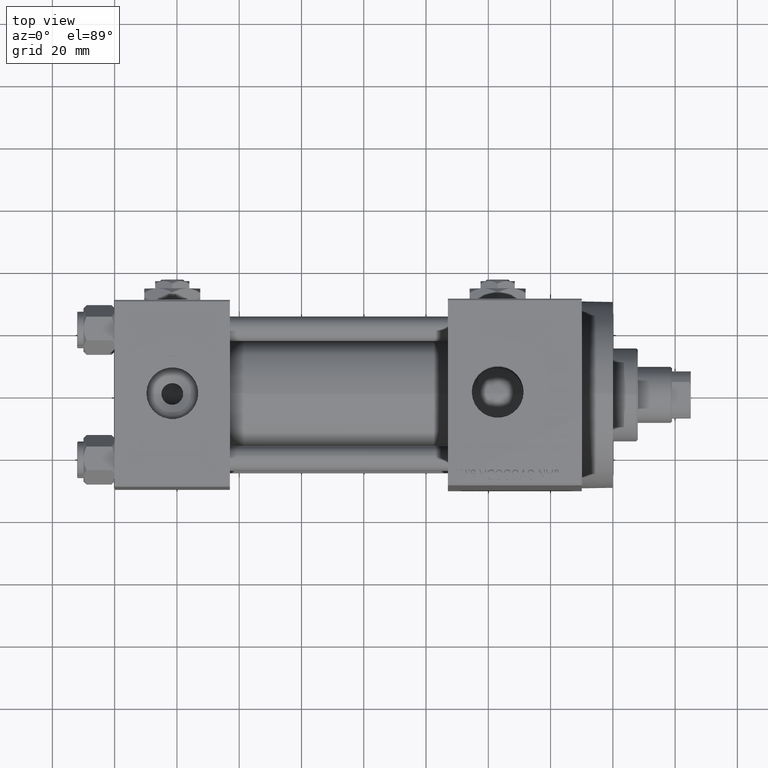
[diagram: clean part render]
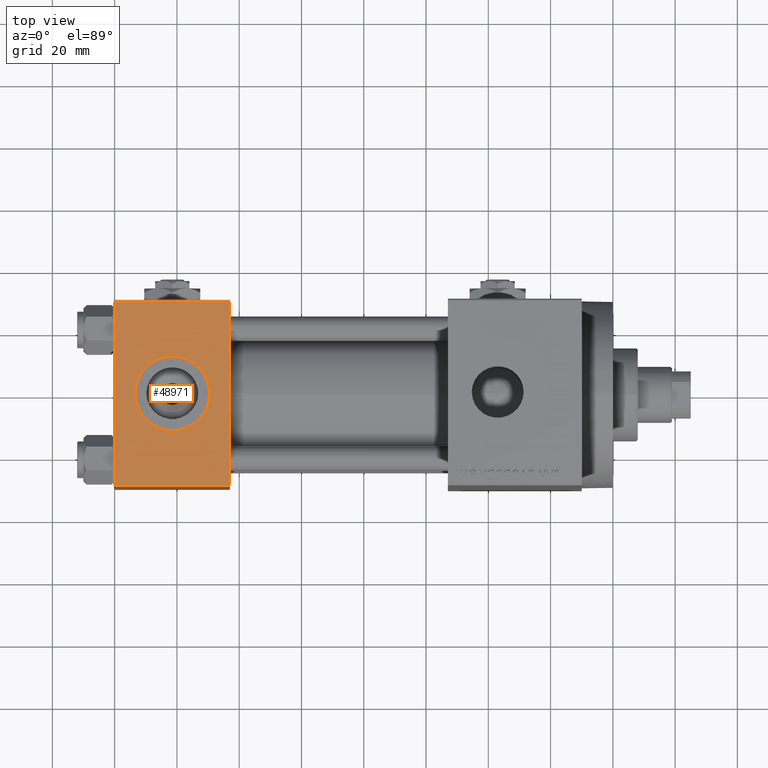
[diagram: same view with one face highlighted and labeled with its STEP entity id]
A machine part, top view. The second image highlights one B-rep face of the part: STEP entity #48971.
In plain terms, the highlighted planar face has unit normal (0, 0, -1).
Its self-contained STEP definition (entity closure, byte-faithful):
#324 = ORIENTED_EDGE ( 'NONE', *, *, #8210, .F. ) ;
#1059 = VERTEX_POINT ( 'NONE', #14816 ) ;
#3604 = CARTESIAN_POINT ( 'NONE',  ( 18.50000000000000000, -3.469446951953614978E-15, 29.99999999999999645 ) ) ;
#3674 = CARTESIAN_POINT ( 'NONE',  ( 0.000000000000000000, -29.49999999999998579, 29.99999999999999289 ) ) ;
#4215 = LINE ( 'NONE', #11466, #8321 ) ;
#4357 = AXIS2_PLACEMENT_3D ( 'NONE', #5670, #8671, #13144 ) ;
#4500 = FACE_OUTER_BOUND ( 'NONE', #11771, .T. ) ;
#5268 = DIRECTION ( 'NONE',  ( 1.000000000000000000, 0.000000000000000000, 0.000000000000000000 ) ) ;
#5531 = ORIENTED_EDGE ( 'NONE', *, *, #40512, .T. ) ;
#5670 = CARTESIAN_POINT ( 'NONE',  ( 18.50000000000000000, -3.469446951953614978E-15, 29.99999999999999645 ) ) ;
#7022 = VECTOR ( 'NONE', #47172, 1000.000000000000000 ) ;
#7538 = CIRCLE ( 'NONE', #4357, 12.00000000000000000 ) ;
#8210 = EDGE_CURVE ( 'NONE', #1059, #27713, #32887, .T. ) ;
#8321 = VECTOR ( 'NONE', #30892, 1000.000000000000000 ) ;
#8671 = DIRECTION ( 'NONE',  ( 0.000000000000000000, 0.000000000000000000, 1.000000000000000000 ) ) ;
#9195 = DIRECTION ( 'NONE',  ( -1.000000000000000000, 0.000000000000000000, 0.000000000000000000 ) ) ;
#9265 = LINE ( 'NONE', #31696, #33699 ) ;
#10854 = DIRECTION ( 'NONE',  ( 0.000000000000000000, 0.000000000000000000, 1.000000000000000000 ) ) ;
#11260 = PLANE ( 'NONE',  #47008 ) ;
#11466 = CARTESIAN_POINT ( 'NONE',  ( 37.00000000000000000, 29.99999999999999289, 30.00000000000000000 ) ) ;
#11771 = EDGE_LOOP ( 'NONE', ( #24141, #5531, #45930, #27494 ) ) ;
#12630 = EDGE_CURVE ( 'NONE', #12651, #42456, #4215, .T. ) ;
#12651 = VERTEX_POINT ( 'NONE', #34878 ) ;
#13144 = DIRECTION ( 'NONE',  ( 1.000000000000000000, 0.000000000000000000, 0.000000000000000000 ) ) ;
#13581 = VECTOR ( 'NONE', #9195, 1000.000000000000000 ) ;
#14094 = VERTEX_POINT ( 'NONE', #41859 ) ;
#14816 = CARTESIAN_POINT ( 'NONE',  ( 30.50000000000000000, -3.469446951953614978E-15, 29.99999999999999645 ) ) ;
#16002 = EDGE_CURVE ( 'NONE', #27713, #1059, #7538, .T. ) ;
#16490 = CARTESIAN_POINT ( 'NONE',  ( 0.000000000000000000, 29.99999999999999289, 30.00000000000000000 ) ) ;
#19954 = DIRECTION ( 'NONE',  ( 0.000000000000000000, 1.156482317317871725E-16, -1.000000000000000000 ) ) ;
#20908 = CARTESIAN_POINT ( 'NONE',  ( 0.000000000000000000, 29.49999999999999289, 30.00000000000000000 ) ) ;
#24141 = ORIENTED_EDGE ( 'NONE', *, *, #26066, .T. ) ;
#24158 = LINE ( 'NONE', #20908, #13581 ) ;
#26065 = DIRECTION ( 'NONE',  ( 1.000000000000000000, 0.000000000000000000, 0.000000000000000000 ) ) ;
#26066 = EDGE_CURVE ( 'NONE', #14094, #41603, #43191, .T. ) ;
#27494 = ORIENTED_EDGE ( 'NONE', *, *, #32074, .T. ) ;
#27713 = VERTEX_POINT ( 'NONE', #46661 ) ;
#30892 = DIRECTION ( 'NONE',  ( 0.000000000000000000, -1.000000000000000000, -1.156482317317871725E-16 ) ) ;
#31696 = CARTESIAN_POINT ( 'NONE',  ( 37.00000000000000000, -29.50000000000000000, 29.99999999999999289 ) ) ;
#32074 = EDGE_CURVE ( 'NONE', #12651, #14094, #24158, .T. ) ;
#32887 = CIRCLE ( 'NONE', #45616, 12.00000000000000000 ) ;
#33699 = VECTOR ( 'NONE', #5268, 1000.000000000000000 ) ;
#34878 = CARTESIAN_POINT ( 'NONE',  ( 37.00000000000000000, 29.49999999999999289, 30.00000000000000000 ) ) ;
#37923 = CARTESIAN_POINT ( 'NONE',  ( 37.00000000000000000, 29.99999999999999289, 30.00000000000000000 ) ) ;
#38894 = DIRECTION ( 'NONE',  ( 0.000000000000000000, 1.000000000000000000, 1.156482317317871725E-16 ) ) ;
#40361 = CARTESIAN_POINT ( 'NONE',  ( 37.00000000000000000, -29.49999999999998579, 29.99999999999999289 ) ) ;
#40512 = EDGE_CURVE ( 'NONE', #41603, #42456, #9265, .T. ) ;
#41603 = VERTEX_POINT ( 'NONE', #3674 ) ;
#41859 = CARTESIAN_POINT ( 'NONE',  ( 0.000000000000000000, 29.49999999999999289, 30.00000000000000000 ) ) ;
#41903 = FACE_BOUND ( 'NONE', #42838, .T. ) ;
#42456 = VERTEX_POINT ( 'NONE', #40361 ) ;
#42838 = EDGE_LOOP ( 'NONE', ( #324, #46096 ) ) ;
#43191 = LINE ( 'NONE', #16490, #7022 ) ;
#45616 = AXIS2_PLACEMENT_3D ( 'NONE', #3604, #10854, #26065 ) ;
#45930 = ORIENTED_EDGE ( 'NONE', *, *, #12630, .F. ) ;
#46096 = ORIENTED_EDGE ( 'NONE', *, *, #16002, .F. ) ;
#46661 = CARTESIAN_POINT ( 'NONE',  ( 6.499999999999997335, -1.999870792976790833E-15, 29.99999999999999645 ) ) ;
#47008 = AXIS2_PLACEMENT_3D ( 'NONE', #37923, #19954, #38894 ) ;
#47172 = DIRECTION ( 'NONE',  ( 0.000000000000000000, -1.000000000000000000, -1.156482317317871725E-16 ) ) ;
#48971 = ADVANCED_FACE ( 'NONE', ( #41903, #4500 ), #11260, .F. ) ;